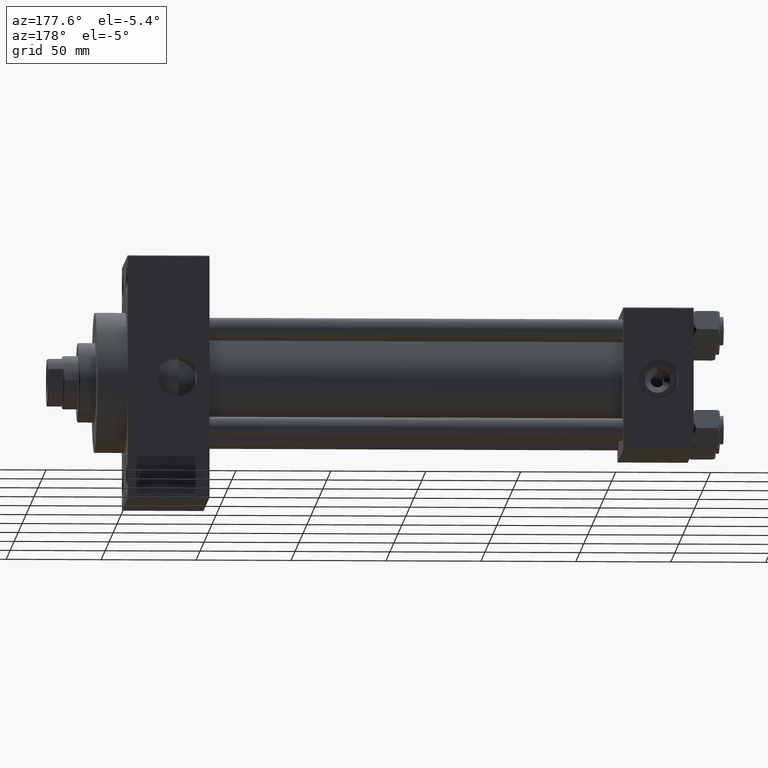
[diagram: clean part render]
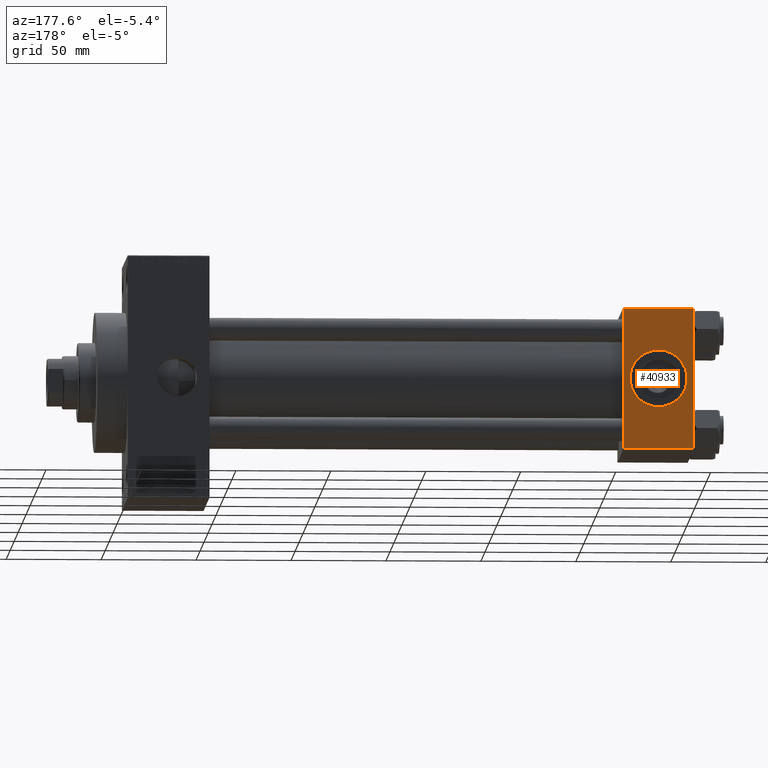
[diagram: same view with one face highlighted and labeled with its STEP entity id]
A machine part, auxiliary view. The second image highlights one B-rep face of the part: STEP entity #40933.
In plain terms, the highlighted planar face has unit normal (0, 1, 0).
Its self-contained STEP definition (entity closure, byte-faithful):
#1126 = CARTESIAN_POINT ( 'NONE',  ( 37.00000000000000000, 37.49999999999999289, 37.00000000000000000 ) ) ;
#1988 = VERTEX_POINT ( 'NONE', #14180 ) ;
#3653 = CARTESIAN_POINT ( 'NONE',  ( 37.00000000000000000, 37.49999999999999289, 37.00000000000000000 ) ) ;
#3730 = PLANE ( 'NONE',  #44136 ) ;
#5917 = ORIENTED_EDGE ( 'NONE', *, *, #42651, .F. ) ;
#7311 = CARTESIAN_POINT ( 'NONE',  ( 37.00000000000000000, 37.49999999999999289, 37.50000000000000000 ) ) ;
#9151 = VECTOR ( 'NONE', #14390, 1000.000000000000000 ) ;
#13697 = CARTESIAN_POINT ( 'NONE',  ( 0.000000000000000000, 37.49999999999999289, 37.00000000000000000 ) ) ;
#14180 = CARTESIAN_POINT ( 'NONE',  ( 18.50000000000000355, 37.49999999999999289, -15.00000000000000178 ) ) ;
#14286 = CARTESIAN_POINT ( 'NONE',  ( 37.00000000000000000, 37.49999999999999289, -36.99999999999998579 ) ) ;
#14390 = DIRECTION ( 'NONE',  ( 1.000000000000000000, 0.000000000000000000, 0.000000000000000000 ) ) ;
#17383 = VECTOR ( 'NONE', #27143, 1000.000000000000000 ) ;
#17459 = LINE ( 'NONE', #21506, #42857 ) ;
#17480 = AXIS2_PLACEMENT_3D ( 'NONE', #28632, #42961, #24823 ) ;
#18501 = VECTOR ( 'NONE', #25756, 1000.000000000000000 ) ;
#19196 = EDGE_CURVE ( 'NONE', #35124, #46771, #17459, .T. ) ;
#20331 = EDGE_CURVE ( 'NONE', #46771, #45604, #36724, .T. ) ;
#21506 = CARTESIAN_POINT ( 'NONE',  ( 37.00000000000000000, 37.49999999999999289, 37.50000000000000000 ) ) ;
#21804 = DIRECTION ( 'NONE',  ( 0.000000000000000000, 1.000000000000000000, 0.000000000000000000 ) ) ;
#21933 = CARTESIAN_POINT ( 'NONE',  ( 37.00000000000000000, 37.49999999999999289, -36.99999999999998579 ) ) ;
#22047 = CIRCLE ( 'NONE', #17480, 15.00000000000000178 ) ;
#22203 = ORIENTED_EDGE ( 'NONE', *, *, #43189, .T. ) ;
#22356 = FACE_BOUND ( 'NONE', #47196, .T. ) ;
#22833 = DIRECTION ( 'NONE',  ( 0.000000000000000000, -0.000000000000000000, 1.000000000000000000 ) ) ;
#23308 = ORIENTED_EDGE ( 'NONE', *, *, #39605, .F. ) ;
#24036 = CARTESIAN_POINT ( 'NONE',  ( 0.000000000000000000, 37.49999999999999289, 37.50000000000000000 ) ) ;
#24823 = DIRECTION ( 'NONE',  ( 0.000000000000000000, 0.000000000000000000, 1.000000000000000000 ) ) ;
#25145 = LINE ( 'NONE', #3653, #9151 ) ;
#25391 = DIRECTION ( 'NONE',  ( 0.000000000000000000, 0.000000000000000000, 1.000000000000000000 ) ) ;
#25520 = VERTEX_POINT ( 'NONE', #13697 ) ;
#25756 = DIRECTION ( 'NONE',  ( -1.000000000000000000, 0.000000000000000000, 0.000000000000000000 ) ) ;
#26471 = EDGE_CURVE ( 'NONE', #27056, #1988, #34707, .T. ) ;
#27056 = VERTEX_POINT ( 'NONE', #38000 ) ;
#27143 = DIRECTION ( 'NONE',  ( 0.000000000000000000, 0.000000000000000000, -1.000000000000000000 ) ) ;
#28632 = CARTESIAN_POINT ( 'NONE',  ( 18.50000000000000000, 37.49999999999999289, 0.000000000000000000 ) ) ;
#29436 = CARTESIAN_POINT ( 'NONE',  ( 18.50000000000000000, 37.49999999999999289, 0.000000000000000000 ) ) ;
#34707 = CIRCLE ( 'NONE', #45415, 15.00000000000000178 ) ;
#35124 = VERTEX_POINT ( 'NONE', #1126 ) ;
#35939 = ORIENTED_EDGE ( 'NONE', *, *, #19196, .T. ) ;
#36048 = DIRECTION ( 'NONE',  ( 0.000000000000000000, 0.000000000000000000, -1.000000000000000000 ) ) ;
#36724 = LINE ( 'NONE', #21933, #18501 ) ;
#37376 = EDGE_LOOP ( 'NONE', ( #35939, #38850, #23308, #22203 ) ) ;
#38000 = CARTESIAN_POINT ( 'NONE',  ( 18.50000000000000000, 37.49999999999999289, 15.00000000000000178 ) ) ;
#38850 = ORIENTED_EDGE ( 'NONE', *, *, #20331, .T. ) ;
#39605 = EDGE_CURVE ( 'NONE', #25520, #45604, #45288, .T. ) ;
#40933 = ADVANCED_FACE ( 'NONE', ( #22356, #44308 ), #3730, .T. ) ;
#42651 = EDGE_CURVE ( 'NONE', #1988, #27056, #22047, .T. ) ;
#42725 = CARTESIAN_POINT ( 'NONE',  ( 0.000000000000000000, 37.49999999999999289, -36.99999999999998579 ) ) ;
#42857 = VECTOR ( 'NONE', #36048, 1000.000000000000000 ) ;
#42961 = DIRECTION ( 'NONE',  ( 0.000000000000000000, 1.000000000000000000, 0.000000000000000000 ) ) ;
#43189 = EDGE_CURVE ( 'NONE', #25520, #35124, #25145, .T. ) ;
#43827 = DIRECTION ( 'NONE',  ( -0.000000000000000000, 1.000000000000000000, 0.000000000000000000 ) ) ;
#44136 = AXIS2_PLACEMENT_3D ( 'NONE', #7311, #43827, #22833 ) ;
#44308 = FACE_OUTER_BOUND ( 'NONE', #37376, .T. ) ;
#44380 = ORIENTED_EDGE ( 'NONE', *, *, #26471, .F. ) ;
#45288 = LINE ( 'NONE', #24036, #17383 ) ;
#45415 = AXIS2_PLACEMENT_3D ( 'NONE', #29436, #21804, #25391 ) ;
#45604 = VERTEX_POINT ( 'NONE', #42725 ) ;
#46771 = VERTEX_POINT ( 'NONE', #14286 ) ;
#47196 = EDGE_LOOP ( 'NONE', ( #44380, #5917 ) ) ;